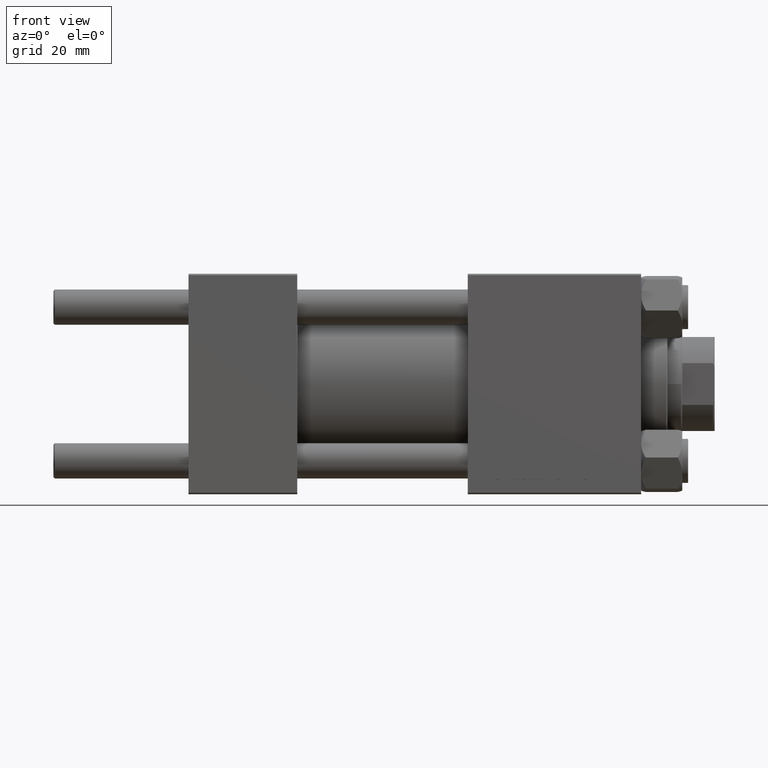
[diagram: clean part render]
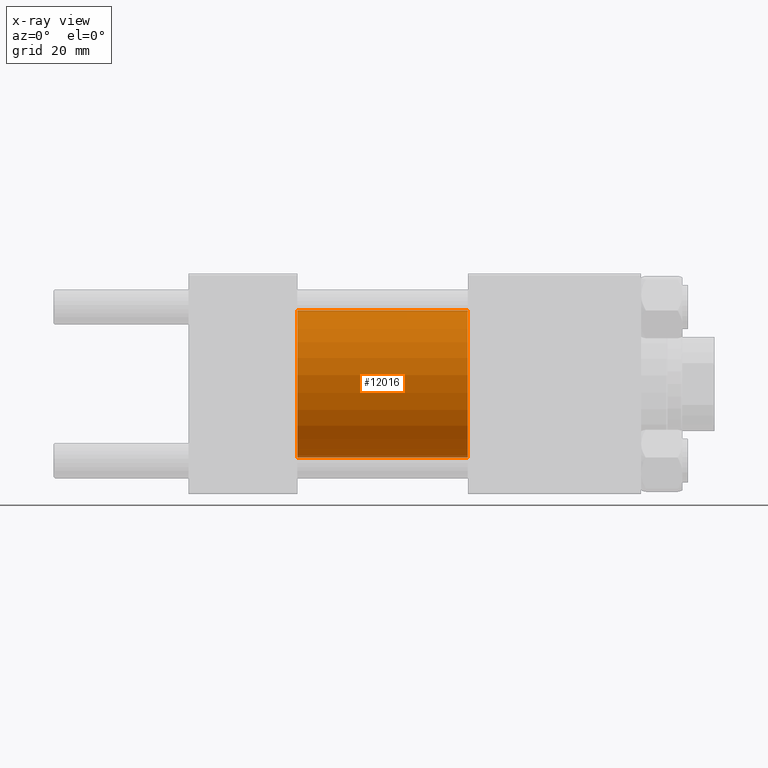
[diagram: x-ray — body ghosted, one internal face saturated and labeled with its STEP entity id]
A machine part, front view, then the same camera in x-ray: the body is ghosted and one INTERNAL B-rep face — a face not visible from any outside direction — is saturated and labeled: STEP entity #12016.
In plain terms, the highlighted cylindrical surface (partial cylindrical patch) has radius 25 mm, axis along (-1, -0, -0).
Its self-contained STEP definition (entity closure, byte-faithful):
#964 = VERTEX_POINT ( 'NONE', #42244 ) ;
#1346 = AXIS2_PLACEMENT_3D ( 'NONE', #36949, #37201, #17739 ) ;
#1981 = EDGE_CURVE ( 'NONE', #23133, #28444, #44744, .T. ) ;
#3820 = VERTEX_POINT ( 'NONE', #43729 ) ;
#4111 = CARTESIAN_POINT ( 'NONE',  ( 95.00000000000000000, 0.000000000000000000, 0.000000000000000000 ) ) ;
#6929 = EDGE_CURVE ( 'NONE', #23133, #3820, #40945, .T. ) ;
#12016 = ADVANCED_FACE ( 'NONE', ( #25707 ), #13837, .F. ) ;
#13837 = CYLINDRICAL_SURFACE ( 'NONE', #14456, 25.00000000000000000 ) ;
#14427 = ORIENTED_EDGE ( 'NONE', *, *, #29517, .T. ) ;
#14456 = AXIS2_PLACEMENT_3D ( 'NONE', #37086, #41382, #26454 ) ;
#15976 = DIRECTION ( 'NONE',  ( 0.000000000000000000, 0.000000000000000000, -1.000000000000000000 ) ) ;
#17494 = CARTESIAN_POINT ( 'NONE',  ( 37.00000000000000000, 0.000000000000000000, 25.00000000000000000 ) ) ;
#17739 = DIRECTION ( 'NONE',  ( 0.000000000000000000, 0.000000000000000000, -1.000000000000000000 ) ) ;
#17939 = CARTESIAN_POINT ( 'NONE',  ( 95.00000000000000000, 0.000000000000000000, 25.00000000000000000 ) ) ;
#20866 = ORIENTED_EDGE ( 'NONE', *, *, #36069, .F. ) ;
#22326 = CIRCLE ( 'NONE', #1346, 25.00000000000000000 ) ;
#23049 = DIRECTION ( 'NONE',  ( 1.000000000000000000, 0.000000000000000000, 0.000000000000000000 ) ) ;
#23133 = VERTEX_POINT ( 'NONE', #39650 ) ;
#25707 = FACE_OUTER_BOUND ( 'NONE', #33378, .T. ) ;
#26454 = DIRECTION ( 'NONE',  ( 0.000000000000000000, 0.000000000000000000, 1.000000000000000000 ) ) ;
#28236 = ORIENTED_EDGE ( 'NONE', *, *, #6929, .T. ) ;
#28444 = VERTEX_POINT ( 'NONE', #17494 ) ;
#29517 = EDGE_CURVE ( 'NONE', #3820, #964, #37970, .T. ) ;
#29558 = DIRECTION ( 'NONE',  ( -1.000000000000000000, -0.000000000000000000, -0.000000000000000000 ) ) ;
#30127 = DIRECTION ( 'NONE',  ( -1.000000000000000000, -0.000000000000000000, -0.000000000000000000 ) ) ;
#32404 = ORIENTED_EDGE ( 'NONE', *, *, #1981, .F. ) ;
#33378 = EDGE_LOOP ( 'NONE', ( #28236, #14427, #20866, #32404 ) ) ;
#35883 = VECTOR ( 'NONE', #30127, 1000.000000000000000 ) ;
#36069 = EDGE_CURVE ( 'NONE', #28444, #964, #22326, .T. ) ;
#36949 = CARTESIAN_POINT ( 'NONE',  ( 37.00000000000000000, 0.000000000000000000, 0.000000000000000000 ) ) ;
#37086 = CARTESIAN_POINT ( 'NONE',  ( 95.00000000000000000, 0.000000000000000000, 0.000000000000000000 ) ) ;
#37201 = DIRECTION ( 'NONE',  ( 1.000000000000000000, 0.000000000000000000, 0.000000000000000000 ) ) ;
#37970 = LINE ( 'NONE', #49831, #35883 ) ;
#38522 = AXIS2_PLACEMENT_3D ( 'NONE', #4111, #23049, #15976 ) ;
#39650 = CARTESIAN_POINT ( 'NONE',  ( 95.00000000000000000, 0.000000000000000000, 25.00000000000000000 ) ) ;
#40945 = CIRCLE ( 'NONE', #38522, 25.00000000000000000 ) ;
#41382 = DIRECTION ( 'NONE',  ( -1.000000000000000000, -0.000000000000000000, -0.000000000000000000 ) ) ;
#42244 = CARTESIAN_POINT ( 'NONE',  ( 37.00000000000000000, 3.061616997868382254E-15, -25.00000000000000000 ) ) ;
#43729 = CARTESIAN_POINT ( 'NONE',  ( 95.00000000000000000, 3.061616997868382254E-15, -25.00000000000000000 ) ) ;
#44135 = VECTOR ( 'NONE', #29558, 1000.000000000000000 ) ;
#44744 = LINE ( 'NONE', #17939, #44135 ) ;
#49831 = CARTESIAN_POINT ( 'NONE',  ( 95.00000000000000000, 3.061616997868382254E-15, -25.00000000000000000 ) ) ;